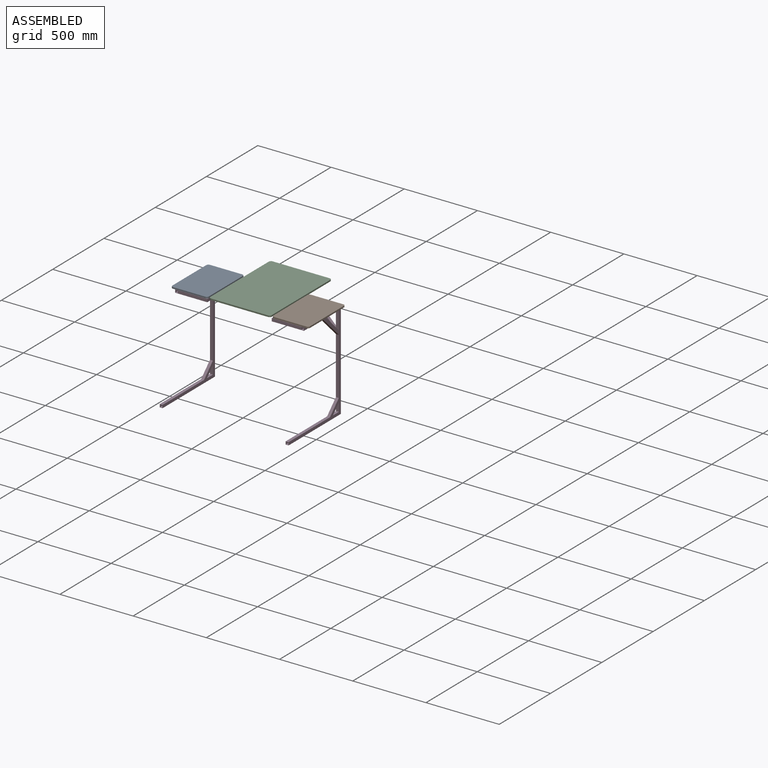
[diagram: assembled view]
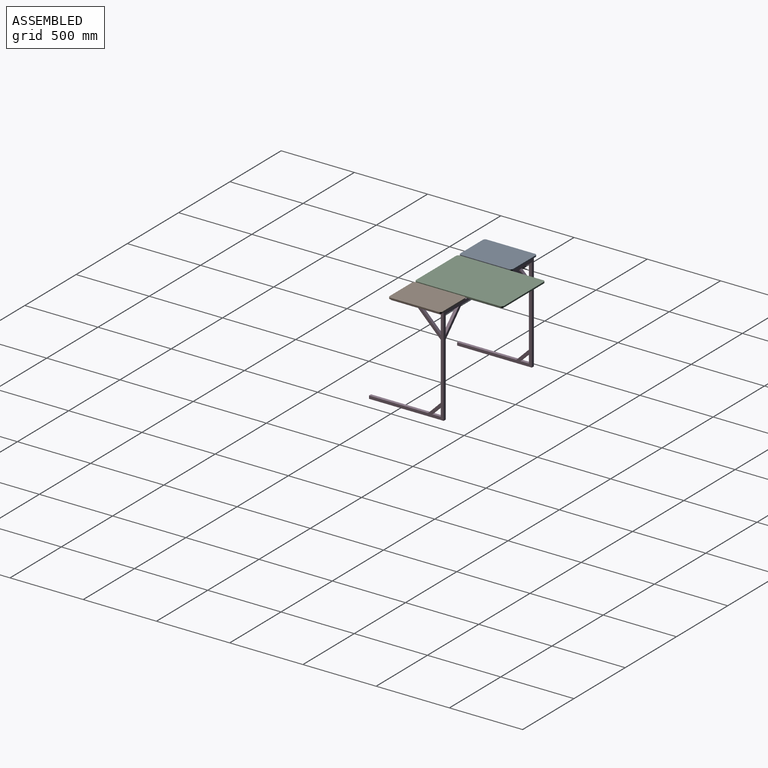
[diagram: assembled view, second angle]
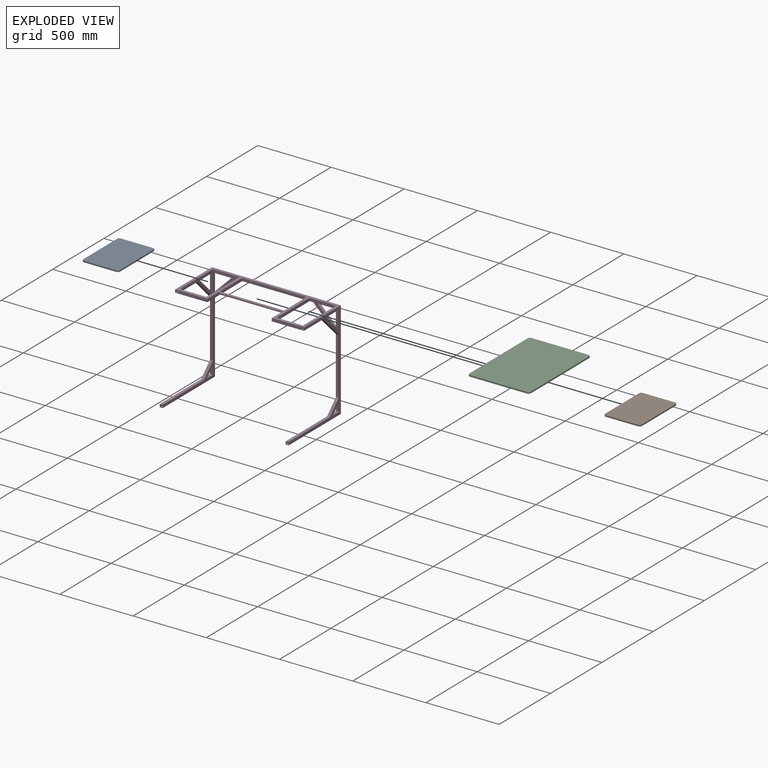
[diagram: exploded view]
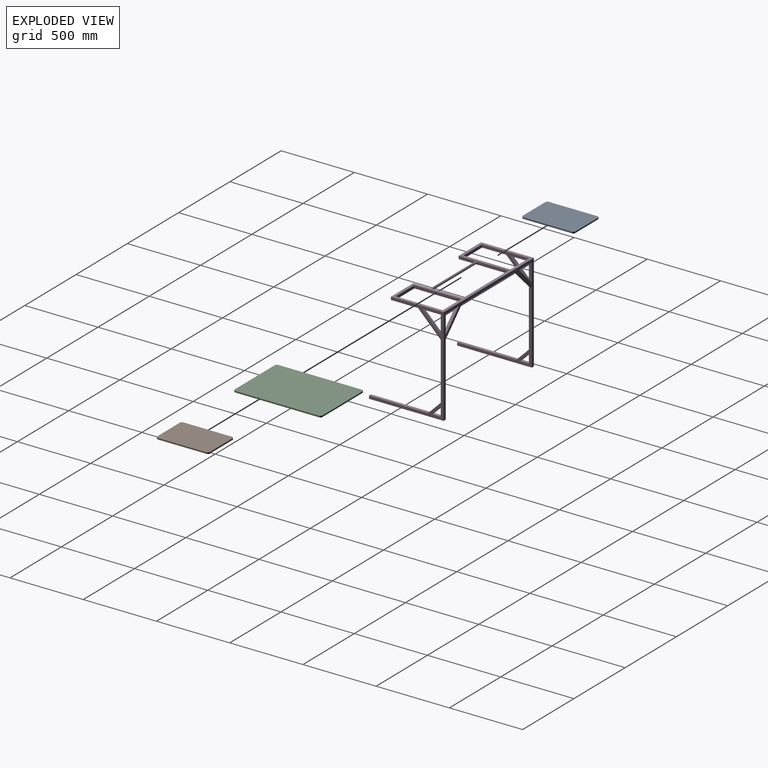
[diagram: exploded view, second angle]
ASSEMBLY  parts=4 mates=3
PART A: 10 faces, bbox 250x360.2x10 mm
  f0: plane 220x10mm, normal (0,1,0), area 2200mm2, adj f4,f5,f6,f8
  f1: plane 330.16x10mm, normal (-1,0,0), area 3301.6mm2, adj f4,f5,f6,f7
  f2: plane 220x10mm, normal (0,-1,0), area 2200mm2, adj f4,f5,f7,f9
  f3: plane 330.16x10mm, normal (1,0,0), area 3301.6mm2, adj f4,f5,f8,f9
  f4: plane 360.16x250mm, normal (0,0,1), area 89847.4mm2, adj f0,f1,f2,f3,f6,f7,f8,f9
  f5: plane 360.16x250mm, normal (0,0,-1), area 89847.4mm2, adj f0,f1,f2,f3,f6,f7,f8,f9
  f6: cylinder r=15mm len=15mm, axis (0,0,-1), area 235.6mm2, adj f0,f1,f4,f5
  f7: cylinder r=15mm len=15mm, axis (0,0,1), area 235.6mm2, adj f1,f2,f4,f5
  f8: cylinder r=15mm len=15mm, axis (0,0,1), area 235.6mm2, adj f0,f3,f4,f5
  f9: cylinder r=15mm len=15mm, axis (0,0,-1), area 235.6mm2, adj f2,f3,f4,f5
PART B: 10 faces, bbox 250x360.2x10 mm
  f0: plane 220x10mm, normal (0,-1,0), area 2200mm2, adj f4,f5,f7,f9
  f1: plane 330.16x10mm, normal (1,0,0), area 3301.6mm2, adj f4,f5,f8,f9
  f2: plane 220x10mm, normal (0,1,0), area 2200mm2, adj f4,f5,f6,f8
  f3: plane 330.16x10mm, normal (-1,0,0), area 3301.6mm2, adj f4,f5,f6,f7
  f4: plane 360.16x250mm, normal (0,0,1), area 89847.4mm2, adj f0,f1,f2,f3,f6,f7,f8,f9
  f5: plane 360.16x250mm, normal (0,0,-1), area 89847.4mm2, adj f0,f1,f2,f3,f6,f7,f8,f9
  f6: cylinder r=15mm len=15mm, axis (0,0,1), area 235.6mm2, adj f2,f3,f4,f5
  f7: cylinder r=15mm len=15mm, axis (0,0,-1), area 235.6mm2, adj f0,f3,f4,f5
  f8: cylinder r=15mm len=15mm, axis (0,0,-1), area 235.6mm2, adj f1,f2,f4,f5
  f9: cylinder r=15mm len=15mm, axis (0,0,1), area 235.6mm2, adj f0,f1,f4,f5
PART C: 18 faces, bbox 420x600x28 mm
  f0: plane 600x420mm, normal (0,0,-1), area 251181.3mm2, adj f1,f2,f3,f4,f6,f7,f8,f9
  f1: plane 390x10mm, normal (0,1,0), area 3900mm2, adj f0,f5,f16,f17
  f2: plane 570x10mm, normal (-1,0,0), area 5700mm2, adj f0,f5,f15,f17
  f3: plane 390x10mm, normal (0,-1,0), area 3900mm2, adj f0,f5,f14,f15
  f4: plane 570x10mm, normal (1,0,0), area 5700mm2, adj f0,f5,f14,f16
  f5: plane 600x420mm, normal (0,0,1), area 251806.9mm2, adj f1,f2,f3,f4,f14,f15,f16,f17
  f6: cylinder r=8.5mm len=50mm, axis (1,0,0), area 2377.4mm2, adj f0,f8,f9
  f7: cylinder r=10mm len=50mm, axis (1,0,0), area 2498.1mm2, adj f0,f8,f9
  f8: plane 20x18mm, normal (-1,0,0), area 72.8mm2, adj f0,f6,f7
  f9: plane 20x18mm, normal (1,0,0), area 72.8mm2, adj f0,f6,f7
  f10: cylinder r=8.5mm len=50mm, axis (-1,0,0), area 2377.4mm2, adj f0,f12,f13
  f11: cylinder r=10mm len=50mm, axis (-1,0,0), area 2498.1mm2, adj f0,f12,f13
  f12: plane 20x18mm, normal (1,0,0), area 72.8mm2, adj f0,f10,f11
  f13: plane 20x18mm, normal (-1,0,0), area 72.8mm2, adj f0,f10,f11
  f14: cylinder r=15mm len=15mm, axis (0,0,1), area 235.6mm2, adj f0,f3,f4,f5
  f15: cylinder r=15mm len=15mm, axis (0,0,-1), area 235.6mm2, adj f0,f2,f3,f5
  f16: cylinder r=15mm len=15mm, axis (0,0,-1), area 235.6mm2, adj f0,f1,f4,f5
  f17: cylinder r=15mm len=15mm, axis (0,0,1), area 235.6mm2, adj f0,f1,f2,f5
PART D: 134 faces, bbox 880x510x670 mm
  f0: plane 440x20mm, normal (0,-1,0), area 8800mm2, adj f11,f18,f66,f69
  f1: plane 180x175mm, normal (0,-1,0), area 7584.1mm2, adj f2,f10,f11,f18,f58,f59,f68
  f2: plane 320.16x175mm, normal (-1,0,0), area 10387.3mm2, adj f1,f11,f12,f18,f34,f35,f70
  f3: plane 320.16x175mm, normal (1,0,0), area 10387.3mm2, adj f4,f11,f18,f36,f37,f57,f63
  f4: plane 180x175mm, normal (0,-1,0), area 7584.1mm2, adj f3,f5,f11,f18,f60,f61,f65
  f5: plane 126.72x20mm, normal (0,0,-1), area 2534.3mm2, adj f4,f6,f25,f61
  f6: plane 126.72x20mm, normal (1,0,0), area 2534.3mm2, adj f5,f25,f50,f61
  f7: plane 510x495mm, normal (1,0,0), area 21734.3mm2, adj f25,f38,f39,f40,f41,f44,f45,f48
  f8: plane 510x495mm, normal (-1,0,0), area 21734.3mm2, adj f21,f22,f25,f26,f27,f30,f31,f32
  f9: plane 126.72x20mm, normal (-1,0,0), area 2534.3mm2, adj f10,f20,f25,f58
  f10: plane 126.72x20mm, normal (0,0,-1), area 2534.3mm2, adj f1,f9,f25,f58
  f11: plane 880x360.16mm, normal (0,0,-1), area 38806.5mm2, adj f0,f1,f2,f3,f4,f17,f19,f25
  f12: plane 126.72x20mm, normal (0,0,-1), area 2534.3mm2, adj f2,f19,f20,f34
  f13: plane 667x508.5mm, normal (-1,0,0), area 25500mm2, adj f14,f16,f17,f23,f24,f28,f29,f30
  f14: plane 358.5x17mm, normal (0,0,-1), area 6094.5mm2, adj f13,f15,f17,f23
  f15: plane 667x508.5mm, normal (1,0,0), area 25500mm2, adj f14,f16,f17,f23,f24,f28,f29,f30
  f16: plane 341.5x17mm, normal (0,0,1), area 5805.5mm2, adj f13,f15,f17,f24
  f17: plane 20x20mm, normal (0,-1,0), area 111mm2, adj f11,f13,f14,f15,f16,f18,f19,f67
  f18: plane 880x360.16mm, normal (0,0,1), area 52006.5mm2, adj f0,f1,f2,f3,f4,f17,f19,f25
  f19: plane 670x510mm, normal (1,0,0), area 36018.4mm2, adj f11,f12,f17,f18,f20,f21,f22,f25
  f20: plane 126.72x20mm, normal (0,-1,0), area 2534.3mm2, adj f9,f12,f19,f34
  f21: plane 388.93x20mm, normal (0,-1,0), area 7778.7mm2, adj f8,f19,f33,f35
  f22: plane 57.78x20mm, normal (0,-1,0), area 1155.6mm2, adj f8,f19,f26,f32
  f23: plane 667x17mm, normal (0,-1,0), area 11339mm2, adj f13,f14,f15,f28
  f24: plane 633x17mm, normal (0,1,0), area 10761mm2, adj f13,f15,f16,f29
  f25: plane 880x670mm, normal (0,1,0), area 51568.1mm2, adj f5,f6,f7,f8,f9,f10,f11,f18
  f26: plane 57.78x20mm, normal (0,0,1), area 1155.6mm2, adj f8,f19,f22,f32
  f27: plane 403.93x20mm, normal (0,0,1), area 8078.7mm2, adj f8,f19,f30,f33
  f28: plane 508.5x17mm, normal (0,0,1), area 8644.5mm2, adj f13,f15,f23,f30
  f29: plane 491.5x17mm, normal (0,0,-1), area 8355.5mm2, adj f13,f15,f24,f30
  f30: plane 20x20mm, normal (0,-1,0), area 111mm2, adj f8,f13,f15,f19,f27,f28,f29,f31
  f31: plane 510x20mm, normal (0,0,-1), area 10200mm2, adj f8,f19,f25,f30
  f32: plane 57.78x57.78mm, normal (0,0.71,-0.71), area 1634.3mm2, adj f8,f19,f22,f26
  f33: plane 86.07x86.07mm, normal (0,-0.71,0.71), area 2434.3mm2, adj f8,f19,f21,f27
  f34: plane 126.72x126.72mm, normal (0,0.71,0.71), area 3584.1mm2, adj f2,f12,f19,f20
  f35: plane 155x155mm, normal (0,-0.71,-0.71), area 4384.1mm2, adj f2,f11,f19,f21
  f36: plane 155x155mm, normal (0,-0.71,-0.71), area 4384.1mm2, adj f3,f11,f49,f51
  f37: plane 126.72x126.72mm, normal (0,0.71,0.71), area 3584.1mm2, adj f3,f50,f51,f57
  f38: plane 86.07x86.07mm, normal (0,-0.71,0.71), area 2434.3mm2, adj f7,f44,f49,f51
  f39: plane 57.78x57.78mm, normal (0,0.71,-0.71), area 1634.3mm2, adj f7,f45,f48,f51
  f40: plane 510x20mm, normal (0,0,-1), area 10200mm2, adj f7,f25,f41,f51
  f41: plane 20x20mm, normal (0,-1,0), area 111mm2, adj f7,f40,f42,f43,f44,f51,f54,f56
  f42: plane 491.5x17mm, normal (0,0,-1), area 8355.5mm2, adj f41,f46,f54,f56
  f43: plane 508.5x17mm, normal (0,0,1), area 8644.5mm2, adj f41,f47,f54,f56
  f44: plane 403.93x20mm, normal (0,0,1), area 8078.7mm2, adj f7,f38,f41,f51
  f45: plane 57.78x20mm, normal (0,0,1), area 1155.6mm2, adj f7,f39,f48,f51
  f46: plane 633x17mm, normal (0,1,0), area 10761mm2, adj f42,f53,f54,f56
  f47: plane 667x17mm, normal (0,-1,0), area 11339mm2, adj f43,f54,f55,f56
  f48: plane 57.78x20mm, normal (0,-1,0), area 1155.6mm2, adj f7,f39,f45,f51
  f49: plane 388.93x20mm, normal (0,-1,0), area 7778.7mm2, adj f7,f36,f38,f51
  f50: plane 126.72x20mm, normal (0,-1,0), area 2534.3mm2, adj f6,f37,f51,f57
  f51: plane 670x510mm, normal (-1,0,0), area 36018.4mm2, adj f11,f18,f25,f36,f37,f38,f39,f40
  f52: plane 20x20mm, normal (0,-1,0), area 111mm2, adj f11,f18,f51,f53,f54,f55,f56,f62
  f53: plane 341.5x17mm, normal (0,0,1), area 5805.5mm2, adj f46,f52,f54,f56
  f54: plane 667x508.5mm, normal (-1,0,0), area 25500mm2, adj f41,f42,f43,f46,f47,f52,f53,f55
  f55: plane 358.5x17mm, normal (0,0,-1), area 6094.5mm2, adj f47,f52,f54,f56
  f56: plane 667x508.5mm, normal (1,0,0), area 25500mm2, adj f41,f42,f43,f46,f47,f52,f53,f55
  f57: plane 126.72x20mm, normal (0,0,-1), area 2534.3mm2, adj f3,f37,f50,f51
  f58: plane 126.72x126.72mm, normal (0.71,0,0.71), area 3584.1mm2, adj f1,f9,f10,f25
  f59: plane 155x155mm, normal (-0.71,0,-0.71), area 4384.1mm2, adj f1,f8,f11,f25
  f60: plane 155x155mm, normal (0.71,0,-0.71), area 4384.1mm2, adj f4,f7,f11,f25
  f61: plane 126.72x126.72mm, normal (-0.71,0,0.71), area 3584.1mm2, adj f4,f5,f6,f25
  f62: plane 20x0.16mm, normal (-1,0,0), area 3.2mm2, adj f11,f18,f52,f64
  f63: plane 180x20mm, normal (0,1,0), area 3600mm2, adj f3,f11,f18,f65
  f64: plane 200x20mm, normal (0,-1,0), area 4000mm2, adj f11,f18,f62,f66
  f65: plane 320.16x20mm, normal (-1,0,0), area 6403.2mm2, adj f4,f11,f18,f63
  f66: plane 340.16x20mm, normal (1,0,0), area 6602.2mm2, adj f0,f11,f18,f64,f72
  f67: plane 20x0.16mm, normal (1,0,0), area 3.2mm2, adj f11,f17,f18,f71
  f68: plane 320.16x20mm, normal (1,0,0), area 6403.2mm2, adj f1,f11,f18,f70
  f69: plane 340.16x20mm, normal (-1,0,0), area 6602.2mm2, adj f0,f11,f18,f71,f72
  f70: plane 180x20mm, normal (0,1,0), area 3600mm2, adj f2,f11,f18,f68
  f71: plane 200x20mm, normal (0,-1,0), area 4000mm2, adj f11,f18,f67,f69
  f72: cylinder r=8mm len=440mm, axis (1,0,0), area 22116.8mm2, adj f66,f69
  f73: plane 181.5x17mm, normal (0,-1,0), area 3085.5mm2, adj f75,f76,f78,f79
  f74: plane 198.5x17mm, normal (0,1,0), area 3374.5mm2, adj f75,f76,f77,f79
  f75: plane 338.66x198.5mm, normal (0,0,1), area 8842.8mm2, adj f73,f74,f77,f78,f79,f80
  f76: plane 338.66x198.5mm, normal (0,0,-1), area 8842.8mm2, adj f73,f74,f77,f78,f79,f80
  f77: plane 338.66x17mm, normal (1,0,0), area 5757.3mm2, adj f74,f75,f76,f80
  f78: plane 321.66x17mm, normal (-1,0,0), area 5468.3mm2, adj f73,f75,f76,f80
  f79: plane 17x17mm, normal (-1,0,0), area 289mm2, adj f73,f74,f75,f76
  f80: plane 17x17mm, normal (0,-1,0), area 289mm2, adj f75,f76,f77,f78
  f81: plane 321.66x17mm, normal (1,0,0), area 5468.3mm2, adj f83,f84,f86,f87
  f82: plane 338.66x17mm, normal (-1,0,0), area 5757.3mm2, adj f83,f84,f85,f87
  f83: plane 338.66x198.5mm, normal (0,0,1), area 8842.8mm2, adj f81,f82,f85,f86,f87,f88
  f84: plane 338.66x198.5mm, normal (0,0,-1), area 8842.8mm2, adj f81,f82,f85,f86,f87,f88
  f85: plane 198.5x17mm, normal (0,1,0), area 3374.5mm2, adj f82,f83,f84,f88
  f86: plane 181.5x17mm, normal (0,-1,0), area 3085.5mm2, adj f81,f83,f84,f88
  f87: plane 17x17mm, normal (0,-1,0), area 289mm2, adj f81,f82,f83,f84
  f88: plane 17x17mm, normal (1,0,0), area 289mm2, adj f83,f84,f85,f86
  f89: plane 128.84x128.84mm, normal (0.71,0,-0.71), area 3097.5mm2, adj f90,f92,f93,f94
  f90: plane 152.88x152.88mm, normal (0,1,0), area 3386.5mm2, adj f89,f91,f93,f94
  f91: plane 152.88x152.88mm, normal (-0.71,0,0.71), area 3675.5mm2, adj f90,f92,f93,f94
  f92: plane 152.88x152.88mm, normal (0,-1,0), area 3386.5mm2, adj f89,f91,f93,f94
  f93: plane 24.04x17mm, normal (1,0,0), area 408.7mm2, adj f89,f90,f91,f92
  f94: plane 24.04x17mm, normal (0,0,-1), area 408.7mm2, adj f89,f90,f91,f92
  f95: plane 152.88x152.88mm, normal (0.71,0,0.71), area 3675.5mm2, adj f96,f98,f99,f100
  f96: plane 152.88x152.88mm, normal (0,1,0), area 3386.5mm2, adj f95,f97,f99,f100
  f97: plane 128.84x128.84mm, normal (-0.71,0,-0.71), area 3097.5mm2, adj f96,f98,f99,f100
  f98: plane 152.88x152.88mm, normal (0,-1,0), area 3386.5mm2, adj f95,f97,f99,f100
  f99: plane 24.04x17mm, normal (0,0,-1), area 408.7mm2, adj f95,f96,f97,f98
  f100: plane 24.04x17mm, normal (-1,0,0), area 408.7mm2, adj f95,f96,f97,f98
  f101: plane 17x17mm, normal (-1,0,0), area 289mm2, adj f102,f103,f104,f105
  f102: plane 840x17mm, normal (0,0,-1), area 14280mm2, adj f101,f103,f105,f106
  f103: plane 840x17mm, normal (0,-1,0), area 14280mm2, adj f101,f102,f104,f106
  f104: plane 840x17mm, normal (0,0,1), area 14280mm2, adj f101,f103,f105,f106
  f105: plane 840x17mm, normal (0,1,0), area 14280mm2, adj f101,f102,f104,f106
  f106: plane 17x17mm, normal (1,0,0), area 289mm2, adj f102,f103,f104,f105
  f107: plane 24.04x17mm, normal (0,-1,0), area 408.7mm2, adj f108,f109,f110,f111
  f108: plane 152.88x152.88mm, normal (0,0.71,0.71), area 3675.5mm2, adj f107,f109,f111,f112
  f109: plane 152.88x152.88mm, normal (1,0,0), area 3386.5mm2, adj f107,f108,f110,f112
  f110: plane 128.84x128.84mm, normal (0,-0.71,-0.71), area 3097.5mm2, adj f107,f109,f111,f112
  f111: plane 152.88x152.88mm, normal (-1,0,0), area 3386.5mm2, adj f107,f108,f110,f112
  f112: plane 24.04x17mm, normal (0,0,-1), area 408.7mm2, adj f108,f109,f110,f111
  f113: plane 24.04x17mm, normal (0,0,1), area 408.7mm2, adj f114,f115,f116,f117
  f114: plane 83.94x83.94mm, normal (0,0.71,-0.71), area 2018.2mm2, adj f113,f115,f117,f118
  f115: plane 83.94x83.94mm, normal (1,0,0), area 1729.2mm2, adj f113,f114,f116,f118
  f116: plane 59.9x59.9mm, normal (0,-0.71,0.71), area 1440.2mm2, adj f113,f115,f117,f118
  f117: plane 83.94x83.94mm, normal (-1,0,0), area 1729.2mm2, adj f113,f114,f116,f118
  f118: plane 24.04x17mm, normal (0,-1,0), area 408.7mm2, adj f114,f115,f116,f117
  f119: plane 24.04x17mm, normal (0,-1,0), area 408.7mm2, adj f120,f121,f122,f123
  f120: plane 152.88x152.88mm, normal (0,0.71,0.71), area 3675.5mm2, adj f119,f121,f123,f124
  f121: plane 152.88x152.88mm, normal (-1,0,0), area 3386.5mm2, adj f119,f120,f122,f124
  f122: plane 128.84x128.84mm, normal (0,-0.71,-0.71), area 3097.5mm2, adj f119,f121,f123,f124
  f123: plane 152.88x152.88mm, normal (1,0,0), area 3386.5mm2, adj f119,f120,f122,f124
  f124: plane 24.04x17mm, normal (0,0,-1), area 408.7mm2, adj f120,f121,f122,f123
  f125: plane 24.04x17mm, normal (0,0,1), area 408.7mm2, adj f126,f127,f128,f129
  f126: plane 83.94x83.94mm, normal (0,0.71,-0.71), area 2018.2mm2, adj f125,f127,f129,f130
  f127: plane 83.94x83.94mm, normal (-1,0,0), area 1729.2mm2, adj f125,f126,f128,f130
  f128: plane 59.9x59.9mm, normal (0,-0.71,0.71), area 1440.2mm2, adj f125,f127,f129,f130
  f129: plane 83.94x83.94mm, normal (1,0,0), area 1729.2mm2, adj f125,f126,f128,f130
  f130: plane 24.04x17mm, normal (0,-1,0), area 408.7mm2, adj f126,f127,f128,f129
  f131: cylinder r=6.5mm len=440mm, axis (1,0,0), area 17969.9mm2, adj f132,f133
  f132: plane 13x13mm, normal (-1,0,0), area 132.7mm2, adj f131
  f133: plane 13x13mm, normal (1,0,0), area 132.7mm2, adj f131
PLACE A t=(-686.31,-37.52,-15.18)mm
PLACE B t=(693.69,-37.52,-15.18)mm
PLACE C rot(axis=(-1,0,0),0deg) t=(3.69,-39.04,-15.12)mm
PLACE D t=(3.69,-39.04,-15.12)mm fixed
MATE fastened B.f3 <-> D.f69  axis (-1,0,0) through (223.69,142.4,-5.18)mm
MATE fastened A.f3 <-> D.f66  axis (1,0,0) through (-216.31,142.4,-5.18)mm
MATE revolute C.f6 <-> D.f72  axis (1,0,0) through (183.69,80.96,-13.12)mm
